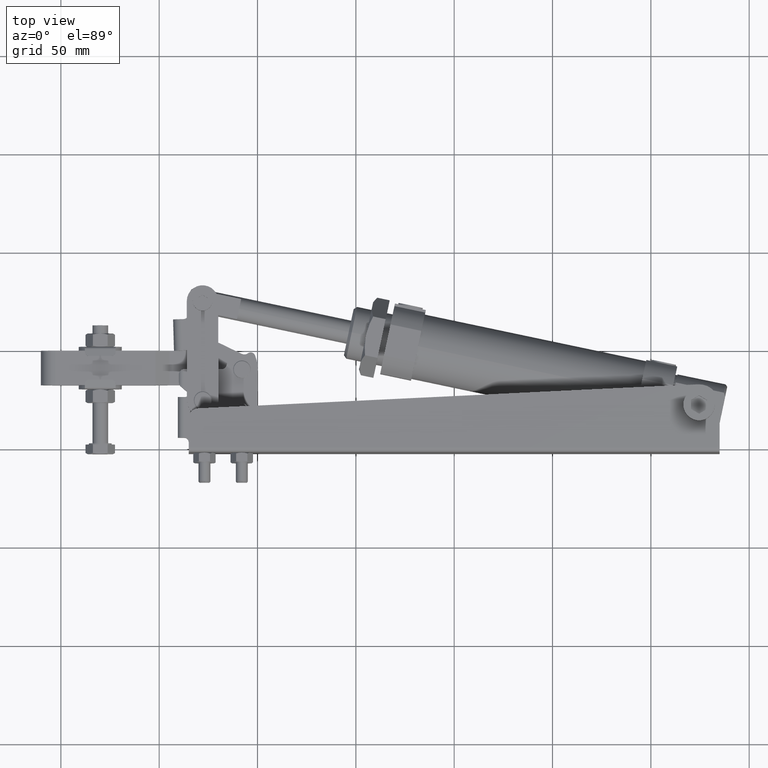
[diagram: clean part render]
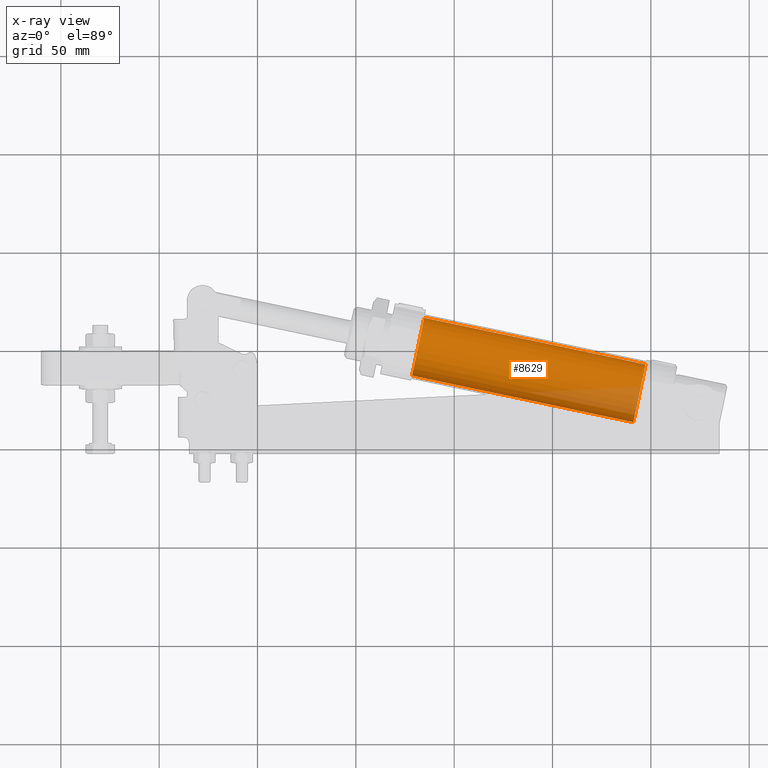
[diagram: x-ray — body ghosted, one internal face saturated and labeled with its STEP entity id]
A machine part, top view, then the same camera in x-ray: the body is ghosted and one INTERNAL B-rep face — a face not visible from any outside direction — is saturated and labeled: STEP entity #8629.
In plain terms, the highlighted cylindrical surface (edge-blend (fillet) strip) has radius 15 mm, axis along (-0.9785, 0.2061, -0).
Its self-contained STEP definition (entity closure, byte-faithful):
#1060 = EDGE_CURVE ( 'NONE', #5699, #1987, #7380, .T. ) ;
#1394 = CARTESIAN_POINT ( 'NONE',  ( 238.7727389455268100, 33.82281205644192600, 1.535018381803681000E-012 ) ) ;
#1987 = VERTEX_POINT ( 'NONE', #19555 ) ;
#2554 = DIRECTION ( 'NONE',  ( 0.9785284868390311500, -0.2061116213232922800, 1.613600807560960900E-016 ) ) ;
#3163 = ORIENTED_EDGE ( 'NONE', *, *, #8112, .T. ) ;
#3309 = DIRECTION ( 'NONE',  ( -0.9785284868390310400, 0.2061116213232921900, -1.613600807560960900E-016 ) ) ;
#3395 = ORIENTED_EDGE ( 'NONE', *, *, #1060, .T. ) ;
#5644 = CARTESIAN_POINT ( 'NONE',  ( 232.5893903058280300, 4.466957451270988400, 1.533181411604960200E-012 ) ) ;
#5699 = VERTEX_POINT ( 'NONE', #24680 ) ;
#6313 = AXIS2_PLACEMENT_3D ( 'NONE', #20740, #9280, #22666 ) ;
#7046 = CARTESIAN_POINT ( 'NONE',  ( 235.6810646256774400, 19.14488475385645600, 1.533181411604960200E-012 ) ) ;
#7380 = CIRCLE ( 'NONE', #18812, 15.00000000000000500 ) ;
#7542 = DIRECTION ( 'NONE',  ( -0.9785284868390310400, 0.2061116213232921900, -1.613600807560960900E-016 ) ) ;
#7833 = VERTEX_POINT ( 'NONE', #17691 ) ;
#7876 = LINE ( 'NONE', #5644, #18052 ) ;
#8112 = EDGE_CURVE ( 'NONE', #1987, #18693, #19138, .T. ) ;
#8292 = FACE_OUTER_BOUND ( 'NONE', #10546, .T. ) ;
#8629 = ADVANCED_FACE ( 'NONE', ( #8292 ), #22937, .F. ) ;
#9280 = DIRECTION ( 'NONE',  ( 0.9785284868390311500, -0.2061116213232922200, 1.613600807560961200E-016 ) ) ;
#10242 = EDGE_CURVE ( 'NONE', #5699, #7833, #7876, .T. ) ;
#10546 = EDGE_LOOP ( 'NONE', ( #3395, #3163, #14353, #14818 ) ) ;
#12923 = AXIS2_PLACEMENT_3D ( 'NONE', #7046, #16466, #20422 ) ;
#13355 = CARTESIAN_POINT ( 'NONE',  ( 84.72651524135285700, 66.27022401576374500, 1.509616044077803400E-012 ) ) ;
#14058 = VECTOR ( 'NONE', #3309, 1000.000000000000100 ) ;
#14353 = ORIENTED_EDGE ( 'NONE', *, *, #20303, .F. ) ;
#14818 = ORIENTED_EDGE ( 'NONE', *, *, #10242, .F. ) ;
#15387 = CARTESIAN_POINT ( 'NONE',  ( 194.1656169079920500, 27.88946026099967000, 1.526335483166033400E-012 ) ) ;
#16466 = DIRECTION ( 'NONE',  ( -0.9785284868390311500, 0.2061116213232922200, -1.613600807560961200E-016 ) ) ;
#17691 = CARTESIAN_POINT ( 'NONE',  ( 78.54316660165407900, 36.91436941059280500, 1.507779073879082600E-012 ) ) ;
#18052 = VECTOR ( 'NONE', #7542, 1000.000000000000100 ) ;
#18693 = VERTEX_POINT ( 'NONE', #13355 ) ;
#18812 = AXIS2_PLACEMENT_3D ( 'NONE', #15387, #2554, #21065 ) ;
#19138 = LINE ( 'NONE', #1394, #14058 ) ;
#19555 = CARTESIAN_POINT ( 'NONE',  ( 197.2572912278414500, 42.56738756358514300, 1.528172453364754400E-012 ) ) ;
#20303 = EDGE_CURVE ( 'NONE', #7833, #18693, #22759, .T. ) ;
#20422 = DIRECTION ( 'NONE',  ( -0.2061116213232922800, -0.9785284868390309300, 0.0000000000000000000 ) ) ;
#20740 = CARTESIAN_POINT ( 'NONE',  ( 81.63484092150346800, 51.59229671317827800, 1.507779073879082600E-012 ) ) ;
#21065 = DIRECTION ( 'NONE',  ( 0.2061116213232922800, 0.9785284868390311500, 0.0000000000000000000 ) ) ;
#22666 = DIRECTION ( 'NONE',  ( 0.2061116213232923900, 0.9785284868390310400, 0.0000000000000000000 ) ) ;
#22759 = CIRCLE ( 'NONE', #6313, 14.99999999999999800 ) ;
#22937 = CYLINDRICAL_SURFACE ( 'NONE', #12923, 15.00000000000000500 ) ;
#24680 = CARTESIAN_POINT ( 'NONE',  ( 191.0739425881426700, 13.21153295841420000, 1.526335483166033400E-012 ) ) ;